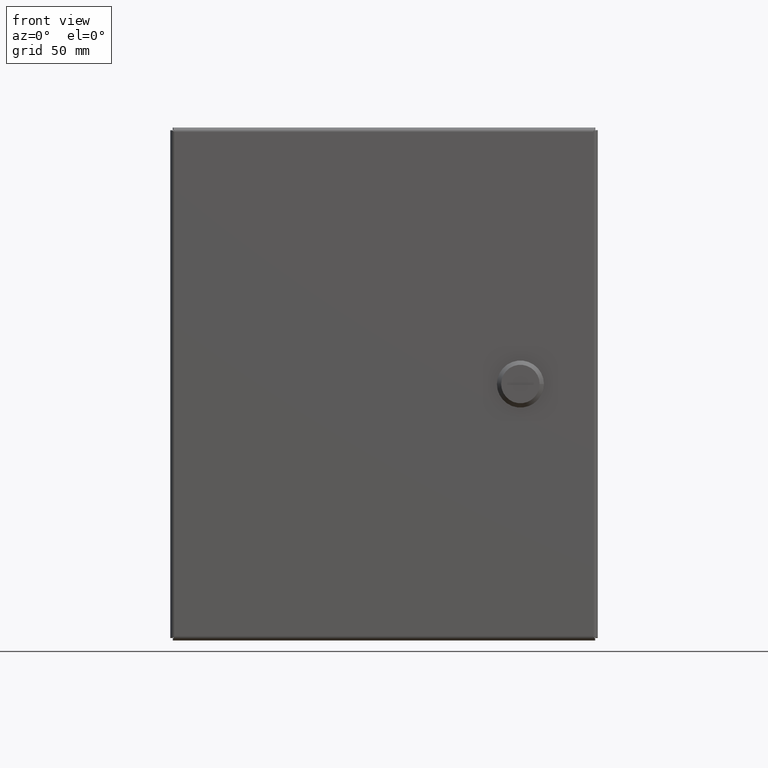
[diagram: clean part render]
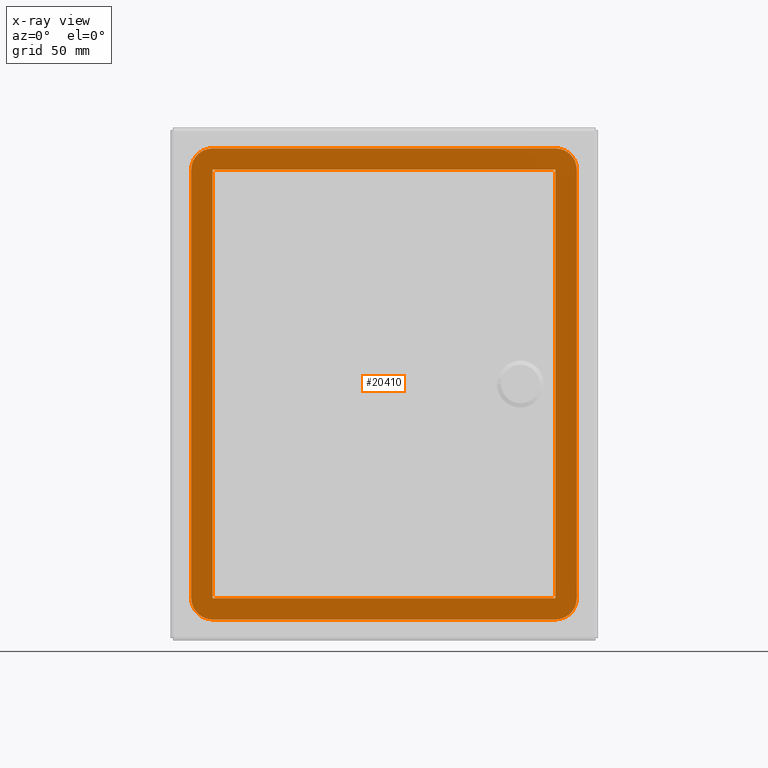
[diagram: x-ray — body ghosted, one internal face saturated and labeled with its STEP entity id]
A machine part, front view, then the same camera in x-ray: the body is ghosted and one INTERNAL B-rep face — a face not visible from any outside direction — is saturated and labeled: STEP entity #20410.
In plain terms, the highlighted planar face has unit normal (0, -1, 0).
Its self-contained STEP definition (entity closure, byte-faithful):
#226 = VERTEX_POINT ( 'NONE', #3353 ) ;
#499 = LINE ( 'NONE', #5094, #1929 ) ;
#572 = EDGE_CURVE ( 'NONE', #21780, #26555, #24766, .T. ) ;
#709 = CARTESIAN_POINT ( 'NONE',  ( -4.511000000000023213, -6.765000000000000568, -5.010999999999999233 ) ) ;
#1158 = CARTESIAN_POINT ( 'NONE',  ( 4.511000000000040089, -6.764999999999999680, -5.011000000000019661 ) ) ;
#1316 = AXIS2_PLACEMENT_3D ( 'NONE', #20464, #24369, #22630 ) ;
#1735 = ORIENTED_EDGE ( 'NONE', *, *, #14327, .T. ) ;
#1929 = VECTOR ( 'NONE', #5234, 39.37007874015748143 ) ;
#2140 = CARTESIAN_POINT ( 'NONE',  ( 4.011000000000079169, -6.764999999999999680, -5.010999999999999233 ) ) ;
#2376 = CARTESIAN_POINT ( 'NONE',  ( -4.010999999999993015, -6.765000000000000568, 5.011000000000024102 ) ) ;
#2429 = LINE ( 'NONE', #2140, #4282 ) ;
#2935 = EDGE_CURVE ( 'NONE', #18349, #27167, #17499, .T. ) ;
#2982 = DIRECTION ( 'NONE',  ( -1.716356617832950001E-17, -1.000000000000000000, 9.121204216617950752E-31 ) ) ;
#3028 = DIRECTION ( 'NONE',  ( -1.000000000000000000, 0.0000000000000000000, 0.0000000000000000000 ) ) ;
#3054 = CARTESIAN_POINT ( 'NONE',  ( 4.011000000000039201, -6.764999999999999680, -5.511000000000008114 ) ) ;
#3353 = CARTESIAN_POINT ( 'NONE',  ( -4.011000000000040089, -6.765000000000000568, -5.011000000000013443 ) ) ;
#4197 = VERTEX_POINT ( 'NONE', #22467 ) ;
#4282 = VECTOR ( 'NONE', #11360, 39.37007874015748143 ) ;
#4649 = EDGE_CURVE ( 'NONE', #11138, #11174, #17545, .T. ) ;
#4676 = CARTESIAN_POINT ( 'NONE',  ( -4.011000000000039201, -6.765000000000000568, -5.010999999999999233 ) ) ;
#4747 = DIRECTION ( 'NONE',  ( -1.716356617832950001E-17, -1.000000000000000000, 9.121204216617950752E-31 ) ) ;
#4818 = LINE ( 'NONE', #22687, #21908 ) ;
#4942 = CIRCLE ( 'NONE', #11841, 0.5000000000000126565 ) ;
#5040 = CARTESIAN_POINT ( 'NONE',  ( 4.511000000000040089, -6.764999999999999680, -5.511000000000000121 ) ) ;
#5094 = CARTESIAN_POINT ( 'NONE',  ( 4.511000000000040089, -6.764999999999999680, -5.011000000000040089 ) ) ;
#5234 = DIRECTION ( 'NONE',  ( -1.000000000000000000, -1.665334536937734811E-16, 6.162975822039166772E-32 ) ) ;
#5239 = CIRCLE ( 'NONE', #12175, 0.5000000000000121014 ) ;
#5534 = EDGE_CURVE ( 'NONE', #4197, #18349, #5239, .T. ) ;
#6619 = EDGE_CURVE ( 'NONE', #14298, #226, #499, .T. ) ;
#7008 = VECTOR ( 'NONE', #21926, 39.37007874015748143 ) ;
#7524 = CARTESIAN_POINT ( 'NONE',  ( -4.510999999999993015, -6.765000000000000568, 5.010999999999999233 ) ) ;
#7971 = VERTEX_POINT ( 'NONE', #2376 ) ;
#8350 = ORIENTED_EDGE ( 'NONE', *, *, #5534, .T. ) ;
#9422 = CARTESIAN_POINT ( 'NONE',  ( -4.010999999999960153, -6.765000000000000568, 5.511000000000032983 ) ) ;
#9976 = CARTESIAN_POINT ( 'NONE',  ( 4.011000000000040089, -6.764999999999999680, 5.010999999999999233 ) ) ;
#10178 = AXIS2_PLACEMENT_3D ( 'NONE', #24157, #19843, #14821 ) ;
#10195 = EDGE_LOOP ( 'NONE', ( #25982, #24986, #28117, #8350, #22143, #1735, #21829, #22509 ) ) ;
#10593 = EDGE_CURVE ( 'NONE', #27502, #4197, #14803, .T. ) ;
#10849 = FACE_BOUND ( 'NONE', #27534, .T. ) ;
#11138 = VERTEX_POINT ( 'NONE', #7524 ) ;
#11174 = VERTEX_POINT ( 'NONE', #709 ) ;
#11360 = DIRECTION ( 'NONE',  ( -6.162975822039159109E-32, -4.414335377375030516E-31, -1.000000000000000000 ) ) ;
#11841 = AXIS2_PLACEMENT_3D ( 'NONE', #27005, #4747, #26864 ) ;
#11966 = DIRECTION ( 'NONE',  ( -1.716356617832950001E-17, -1.000000000000000000, 9.121204216617950752E-31 ) ) ;
#12175 = AXIS2_PLACEMENT_3D ( 'NONE', #9976, #11966, #3028 ) ;
#12307 = ORIENTED_EDGE ( 'NONE', *, *, #26254, .T. ) ;
#14098 = DIRECTION ( 'NONE',  ( -1.000000000000000000, 0.0000000000000000000, 0.0000000000000000000 ) ) ;
#14298 = VERTEX_POINT ( 'NONE', #21868 ) ;
#14327 = EDGE_CURVE ( 'NONE', #27167, #11138, #17040, .T. ) ;
#14803 = LINE ( 'NONE', #18832, #25723 ) ;
#14821 = DIRECTION ( 'NONE',  ( -1.000000000000000000, 0.0000000000000000000, 0.0000000000000000000 ) ) ;
#14862 = VECTOR ( 'NONE', #24154, 39.37007874015748143 ) ;
#15383 = CARTESIAN_POINT ( 'NONE',  ( -4.510999999999999233, -6.765000000000000568, -5.010999999999999233 ) ) ;
#17040 = CIRCLE ( 'NONE', #10178, 0.5000000000000126565 ) ;
#17499 = LINE ( 'NONE', #21679, #23509 ) ;
#17545 = LINE ( 'NONE', #15383, #14862 ) ;
#17819 = DIRECTION ( 'NONE',  ( 6.162975822039159109E-32, 4.414335377375030516E-31, 1.000000000000000000 ) ) ;
#18229 = DIRECTION ( 'NONE',  ( 1.000000000000000000, 1.665334536937734811E-16, -6.162975822039166772E-32 ) ) ;
#18349 = VERTEX_POINT ( 'NONE', #22301 ) ;
#18773 = CARTESIAN_POINT ( 'NONE',  ( -4.011000000000039201, -6.765000000000000568, -5.511000000000003674 ) ) ;
#18832 = CARTESIAN_POINT ( 'NONE',  ( 4.511000000000040089, -6.764999999999999680, -5.010999999999999233 ) ) ;
#19141 = AXIS2_PLACEMENT_3D ( 'NONE', #23005, #2982, #14098 ) ;
#19260 = VERTEX_POINT ( 'NONE', #27283 ) ;
#19624 = FACE_OUTER_BOUND ( 'NONE', #10195, .T. ) ;
#19843 = DIRECTION ( 'NONE',  ( -1.716356617832950001E-17, -1.000000000000000000, 9.121204216617950752E-31 ) ) ;
#19893 = EDGE_CURVE ( 'NONE', #26555, #27502, #4942, .T. ) ;
#20108 = LINE ( 'NONE', #4676, #22784 ) ;
#20410 = ADVANCED_FACE ( 'NONE', ( #10849, #19624 ), #28478, .T. ) ;
#20464 = CARTESIAN_POINT ( 'NONE',  ( 4.511000000000040089, -6.764999999999999680, -5.010999999999999233 ) ) ;
#21679 = CARTESIAN_POINT ( 'NONE',  ( 4.511000000000040089, -6.764999999999999680, 5.511000000000040977 ) ) ;
#21780 = VERTEX_POINT ( 'NONE', #18773 ) ;
#21829 = ORIENTED_EDGE ( 'NONE', *, *, #4649, .T. ) ;
#21868 = CARTESIAN_POINT ( 'NONE',  ( 4.011000000000052523, -6.764999999999999680, -5.011000000000031207 ) ) ;
#21908 = VECTOR ( 'NONE', #18229, 39.37007874015748143 ) ;
#21926 = DIRECTION ( 'NONE',  ( 1.000000000000000000, 1.665334536937734811E-16, -6.162975822039166772E-32 ) ) ;
#22143 = ORIENTED_EDGE ( 'NONE', *, *, #2935, .T. ) ;
#22301 = CARTESIAN_POINT ( 'NONE',  ( 4.011000000000040089, -6.764999999999999680, 5.511000000000032983 ) ) ;
#22467 = CARTESIAN_POINT ( 'NONE',  ( 4.511000000000048971, -6.764999999999999680, 5.010999999999999233 ) ) ;
#22509 = ORIENTED_EDGE ( 'NONE', *, *, #26045, .T. ) ;
#22630 = DIRECTION ( 'NONE',  ( -1.000000000000000000, -1.665334536937734811E-16, 6.162975822039166772E-32 ) ) ;
#22687 = CARTESIAN_POINT ( 'NONE',  ( 4.511000000000040089, -6.764999999999999680, 5.011000000000039201 ) ) ;
#22784 = VECTOR ( 'NONE', #17819, 39.37007874015748143 ) ;
#23005 = CARTESIAN_POINT ( 'NONE',  ( -4.011000000000038312, -6.765000000000000568, -5.010999999999999233 ) ) ;
#23293 = DIRECTION ( 'NONE',  ( 6.162975822039159109E-32, 4.414335377375030516E-31, 1.000000000000000000 ) ) ;
#23311 = EDGE_CURVE ( 'NONE', #19260, #14298, #2429, .T. ) ;
#23509 = VECTOR ( 'NONE', #26318, 39.37007874015748143 ) ;
#24154 = DIRECTION ( 'NONE',  ( -6.162975822039159109E-32, -4.414335377375030516E-31, -1.000000000000000000 ) ) ;
#24157 = CARTESIAN_POINT ( 'NONE',  ( -4.010999999999960153, -6.765000000000000568, 5.010999999999999233 ) ) ;
#24356 = EDGE_CURVE ( 'NONE', #226, #7971, #20108, .T. ) ;
#24369 = DIRECTION ( 'NONE',  ( 1.665334536937734811E-16, -1.000000000000000000, 4.414335377375030516E-31 ) ) ;
#24766 = LINE ( 'NONE', #5040, #7008 ) ;
#24986 = ORIENTED_EDGE ( 'NONE', *, *, #19893, .T. ) ;
#25723 = VECTOR ( 'NONE', #23293, 39.37007874015748143 ) ;
#25848 = ORIENTED_EDGE ( 'NONE', *, *, #24356, .T. ) ;
#25982 = ORIENTED_EDGE ( 'NONE', *, *, #572, .T. ) ;
#26039 = CIRCLE ( 'NONE', #19141, 0.5000000000000121014 ) ;
#26045 = EDGE_CURVE ( 'NONE', #11174, #21780, #26039, .T. ) ;
#26242 = ORIENTED_EDGE ( 'NONE', *, *, #23311, .T. ) ;
#26254 = EDGE_CURVE ( 'NONE', #7971, #19260, #4818, .T. ) ;
#26318 = DIRECTION ( 'NONE',  ( -1.000000000000000000, -1.665334536937734811E-16, 6.162975822039166772E-32 ) ) ;
#26555 = VERTEX_POINT ( 'NONE', #3054 ) ;
#26864 = DIRECTION ( 'NONE',  ( -1.000000000000000000, 0.0000000000000000000, 0.0000000000000000000 ) ) ;
#27005 = CARTESIAN_POINT ( 'NONE',  ( 4.011000000000040089, -6.764999999999999680, -5.010999999999999233 ) ) ;
#27167 = VERTEX_POINT ( 'NONE', #9422 ) ;
#27283 = CARTESIAN_POINT ( 'NONE',  ( 4.011000000000059629, -6.764999999999999680, 5.011000000000027654 ) ) ;
#27502 = VERTEX_POINT ( 'NONE', #1158 ) ;
#27534 = EDGE_LOOP ( 'NONE', ( #28289, #25848, #12307, #26242 ) ) ;
#28117 = ORIENTED_EDGE ( 'NONE', *, *, #10593, .T. ) ;
#28289 = ORIENTED_EDGE ( 'NONE', *, *, #6619, .T. ) ;
#28478 = PLANE ( 'NONE',  #1316 ) ;